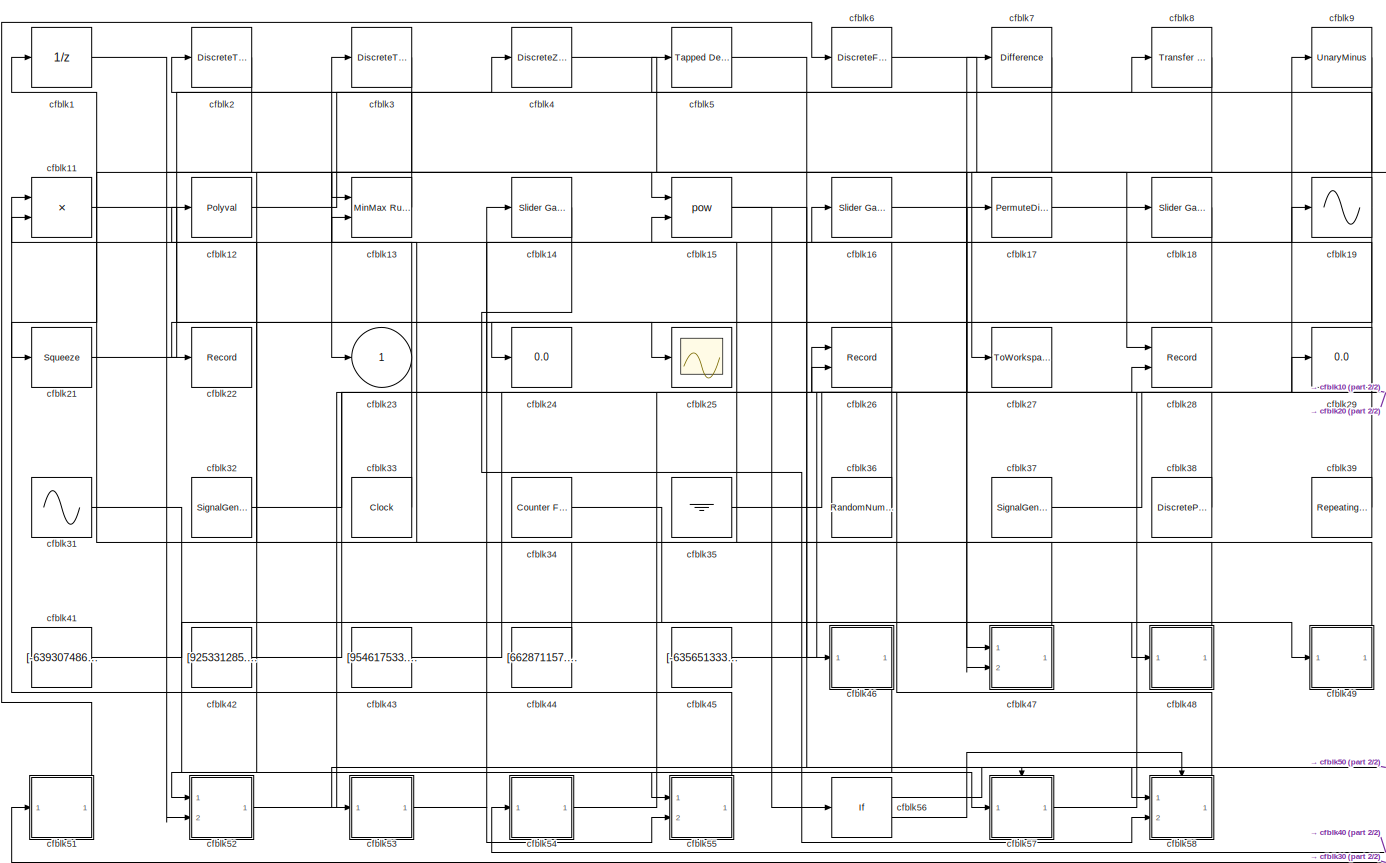
[diagram: root canvas - part 1/2, most of the canvas]
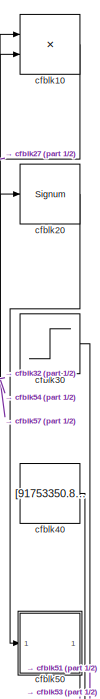
[diagram: root canvas - part 2/2, right side, full height]
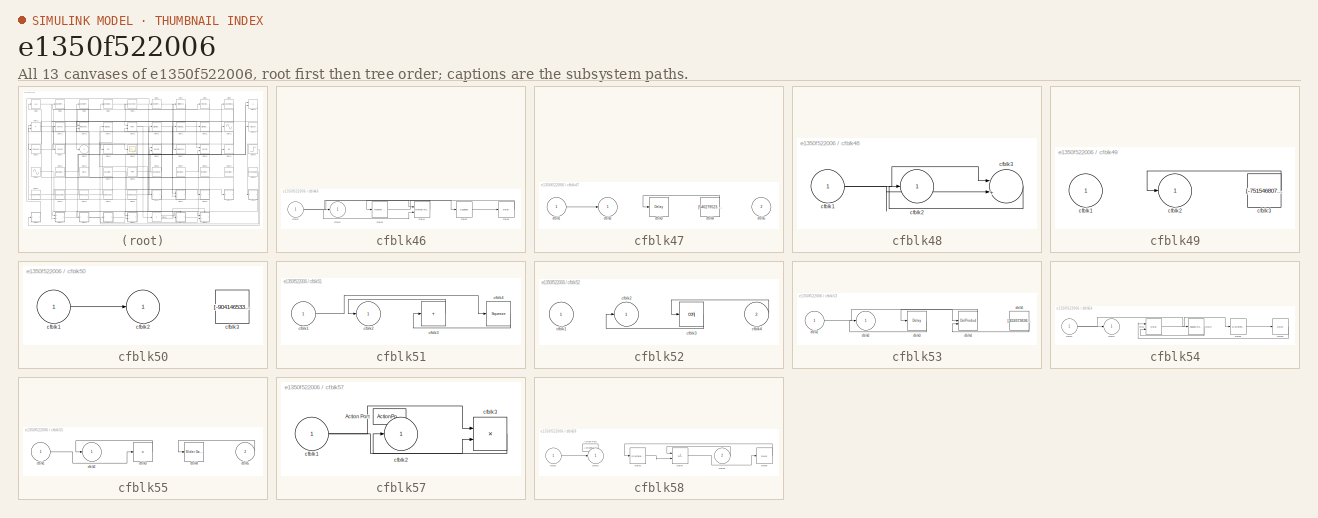
[diagram: thumbnail index - all 13 canvases of the model, root first then tree order]
MODEL slx_e1350f522006
KIND model
CONFIG AbsTol = auto
CONFIG EnableMultiTasking = off
CONFIG FixedStep = auto
CONFIG MaxStep = auto
CONFIG MinStep = auto
CONFIG RelTol = 1e-3
CONFIG SampleTimeConstraint = Unconstrained
CONFIG SolverName = VariableStepAuto
CONFIG StartTime = 0.0
CONFIG StopTime = 10.0
BLOCK [UnitDelay] cfblk1
  HasFrameUpgradeWarning = on
BLOCK [Product] cfblk10
  Ports = [2, 1]
BLOCK [Product] cfblk11
  Ports = [2, 1]
BLOCK [Polyval] cfblk12
  Coefs = [ +2.081618890e-019, -1.441693666e-014, +4.719686976e-010, -8.536869453e-006, +1.621573104e-001, -8.087801117e+001 ]
BLOCK [Reference] cfblk13  REF=simulink/Math
Operations/MinMax
Running
Resettable
  Ports = [2, 1]
  SourceBlock = simulink/Math\nOperations/MinMax\nRunning\nResettable
  SourceProductBaseCode = SL
  SourceType = MinMax Running Resettable
BLOCK [Reference] cfblk14  REF=simulink/Math
Operations/Slider
Gain
  Ports = [1, 1]
  SourceBlock = simulink/Math\nOperations/Slider\nGain
  SourceProductBaseCode = SL
  SourceType = Slider Gain
BLOCK [Math] cfblk15
  Operator = pow
  Ports = [2, 1]
BLOCK [Reference] cfblk16  REF=simulink/Math
Operations/Slider
Gain
  Ports = [1, 1]
  SourceBlock = simulink/Math\nOperations/Slider\nGain
  SourceProductBaseCode = SL
  SourceType = Slider Gain
BLOCK [PermuteDimensions] cfblk17
BLOCK [Reference] cfblk18  REF=simulink/Math
Operations/Slider
Gain
  Ports = [1, 1]
  SourceBlock = simulink/Math\nOperations/Slider\nGain
  SourceProductBaseCode = SL
  SourceType = Slider Gain
BLOCK [Sin] cfblk19
  Ports = [1, 1]
  SampleTime = 0
  TimeSource = Use external signal
BLOCK [DiscreteTransferFcn] cfblk2
  InputPortMap = u0
  Ports = [1, 1]
  SampleTime = 1
BLOCK [Signum] cfblk20
BLOCK [Squeeze] cfblk21
BLOCK [Record] cfblk22
  FileSettingsInternal = {"entries":[{"content":{"excelSettings":{"content":{},"type":"Streamout.ExcelSettings"}},"type":"Streamout.FileSettingStorage","uuid":"1786dd08-d3d1-48fd-88f3-6c9c5e3b2244"}],"packageUris":["http://schema.mathworks.com/mf0/streamout_blocks/R2020a"],"version":"1.0"}
  Ports = [1]
  SignalsInternal = {"entries":[{"content":{"signals":[{"content":{"blockPath":["sampleModel273/cfblk22"],"channel":[],"dimensions":[1,1],"domain":"sampleModel273/cfblk22","lineColor":"#ff13a6","plots":[1],"port":1,"sid":[""],"signalID":11389,"signalName":"cfblk18"},"type":"RecordBlkView.Signal","uuid":"44d7af05-e021-4219-85f4-b2264b388561"}]},"type":"RecordBlkView.InputSignals","uuid":"1305e598-0f40-4dae-bf49-06488a...<+100ch>
  VisualizationBindings = {"sparklinesplugin":{"info":[{"bindingParametersList":[],"subplotID":1}]}}
BLOCK [Outport] cfblk23
BLOCK [Display] cfblk24
  Decimation = 1
  Ports = [1]
BLOCK [Scope] cfblk25
  Floating = off
  NumInputPorts = 1
  Ports = [1]
BLOCK [Record] cfblk26
  CompatibilityTag = XY
  FileSettingsInternal = {"entries":[{"content":{"excelSettings":{"content":{},"type":"Streamout.ExcelSettings"}},"type":"Streamout.FileSettingStorage","uuid":"c9907c03-a1b4-46c3-905a-7ea5945ed0d3"}],"packageUris":["http://schema.mathworks.com/mf0/streamout_blocks/R2020a"],"version":"1.0"}
  Layout = [1 1]
  Ports = [2]
  SignalsInternal = {"entries":[{"content":{"signals":[{"content":{"blockPath":["sampleModel273/cfblk26"],"channel":[],"dimensions":[1],"domain":"sampleModel273/cfblk26","lineColor":"#a2142f","plots":[1],"port":1,"sid":[""],"signalID":11373,"signalName":"cfblk38"},"type":"RecordBlkView.Signal","uuid":"10f35443-25b8-4ed5-9519-77cd749e2a49"},{"content":{"blockPath":["sampleModel273/cfblk26"],"channel":[],"dimensions":[...<+385ch>
  VisualizationBindings = {"xyplotplugin":{"info":[{"series":[{"bindingParametersList":[{"parameter":"X-Axis","signalID":11373,"signalName":"cfblk38"},{"parameter":"Y-Axis","signalID":11377,"signalName":"cfblk58"}],"seriesID":34757}],"subplotID":1}]}}
BLOCK [ToWorkspace] cfblk27
  FixptAsFi = on
  MaxDataPoints = inf
  Ports = [1]
  SampleTime = -1
  SaveFormat = Timeseries
  VariableName = sicnexj
BLOCK [Record] cfblk28
  CompatibilityTag = XY
  FileSettingsInternal = {"entries":[{"content":{"excelSettings":{"content":{},"type":"Streamout.ExcelSettings"}},"type":"Streamout.FileSettingStorage","uuid":"f11b4837-361d-47ed-bc23-be4c68ae3fbc"}],"packageUris":["http://schema.mathworks.com/mf0/streamout_blocks/R2020a"],"version":"1.0"}
  Layout = [1 1]
  Ports = [2]
  SignalsInternal = {"entries":[{"content":{"signals":[{"content":{"blockPath":["sampleModel273/cfblk28"],"channel":[],"dimensions":[1],"domain":"sampleModel273/cfblk28","lineColor":"#a2142f","plots":[1],"port":1,"sid":[""],"signalID":11381,"signalName":"cfblk6"},"type":"RecordBlkView.Signal","uuid":"39c39639-ba01-4672-b896-9cb9c6ecd09e"},{"content":{"blockPath":["sampleModel273/cfblk28"],"channel":[],"dimensions":[1...<+384ch>
  VisualizationBindings = {"xyplotplugin":{"info":[{"series":[{"bindingParametersList":[{"parameter":"X-Axis","signalID":11381,"signalName":"cfblk6"},{"parameter":"Y-Axis","signalID":11385,"signalName":"cfblk43"}],"seriesID":55614}],"subplotID":1}]}}
BLOCK [Display] cfblk29
  Decimation = 1
  Ports = [1]
BLOCK [DiscreteTransferFcn] cfblk3
  InputPortMap = u0
  Ports = [1, 1]
  SampleTime = 1
BLOCK [Step] cfblk30
  After = [817897715.184338]
  Before = [117438544.028774]
  SampleTime = 0
  Time = [48.000000]
BLOCK [Sin] cfblk31
  Amplitude = [629555870.349999]
  Bias = [755274726.941135]
  Ports = [0, 1]
  SampleTime = 0
BLOCK [SignalGenerator] cfblk32
  Amplitude = [-783473337.137861]
  Ports = [0, 1]
  WaveForm = square
BLOCK [Clock] cfblk33
BLOCK [Reference] cfblk34  REF=simulink/Sources/Counter
Free-Running
  Ports = [0, 1]
  SourceBlock = simulink/Sources/Counter\nFree-Running
  SourceProductBaseCode = SL
  SourceType = Counter Free-Running
BLOCK [Ground] cfblk35
BLOCK [RandomNumber] cfblk36
  Mean = [98921.584735]
  SampleTime = 0.1
  Seed = [249651186.000000]
  Variance = [34184.174299]
BLOCK [SignalGenerator] cfblk37
  Amplitude = [196507773.243477]
  Ports = [0, 1]
BLOCK [DiscretePulseGenerator] cfblk38
  Amplitude = [376878024.596685]
  Period = [65768725.640575]
  PhaseDelay = [3.000000]
  Ports = [0, 1]
  PulseType = Time based
  PulseWidth = 5
BLOCK [Reference] cfblk39  REF=simulink/Sources/Repeating
Sequence
  Ports = [0, 1]
  SourceBlock = simulink/Sources/Repeating\nSequence
  SourceProductBaseCode = SL
  SourceType = Repeating table
BLOCK [DiscreteZeroPole] cfblk4
  Gain = 1
  Poles = [0 0.5]
BLOCK [Constant] cfblk40
  SampleTime = 1
  Value = [91753350.881648]
BLOCK [Constant] cfblk41
  SampleTime = 1
  Value = [-639307486.208974]
BLOCK [Constant] cfblk42
  SampleTime = 1
  Value = [925331285.928977]
BLOCK [Constant] cfblk43
  SampleTime = 1
  Value = [954617533.006240]
BLOCK [Constant] cfblk44
  SampleTime = 1
  Value = [662871157.979276]
BLOCK [Constant] cfblk45
  SampleTime = 1
  Value = [-635651333.151348]
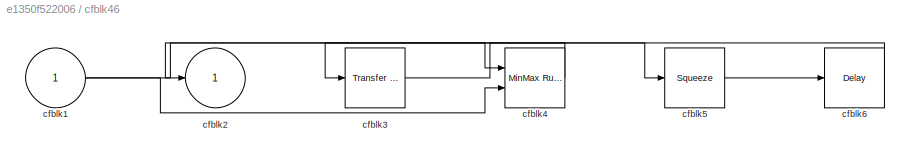
BLOCK [SubSystem] cfblk46
  Ports = [1, 1]
  RequestExecContextInheritance = off
BLOCK [Inport] cfblk46/cfblk1
BLOCK [Outport] cfblk46/cfblk2
BLOCK [Reference] cfblk46/cfblk3  REF=simulink/Discrete/Transfer Fcn
First Order
  Ports = [1, 1]
  SourceBlock = simulink/Discrete/Transfer Fcn\nFirst Order
  SourceProductBaseCode = SL
  SourceType = First Order Transfer Fcn
BLOCK [Reference] cfblk46/cfblk4  REF=simulink/Math
Operations/MinMax
Running
Resettable
  Ports = [2, 1]
  SourceBlock = simulink/Math\nOperations/MinMax\nRunning\nResettable
  SourceProductBaseCode = SL
  SourceType = MinMax Running Resettable
BLOCK [Squeeze] cfblk46/cfblk5
BLOCK [Delay] cfblk46/cfblk6
  InputPortMap = u0
  Ports = [1, 1]
  SampleTime = 1
BLOCK [SubSystem] cfblk47
  Ports = [2, 1]
  RequestExecContextInheritance = off
BLOCK [Inport] cfblk47/cfblk1
BLOCK [Outport] cfblk47/cfblk2
BLOCK [Delay] cfblk47/cfblk3
  InputPortMap = u0
  Ports = [1, 1]
  SampleTime = 1
BLOCK [Constant] cfblk47/cfblk4
  SampleTime = 1
  Value = [540279523.096778]
BLOCK [Inport] cfblk47/cfblk5
  Port = 2
BLOCK [SubSystem] cfblk48
  Ports = [1, 1]
  RequestExecContextInheritance = off
BLOCK [Inport] cfblk48/cfblk1
BLOCK [Outport] cfblk48/cfblk2
BLOCK [Sum] cfblk48/cfblk3
  Inputs = |++
  Ports = [2, 1]
BLOCK [SubSystem] cfblk49
  Ports = [1, 1]
  RequestExecContextInheritance = off
BLOCK [Inport] cfblk49/cfblk1
BLOCK [Outport] cfblk49/cfblk2
BLOCK [Constant] cfblk49/cfblk3
  SampleTime = 1
  Value = [-751546807.111580]
BLOCK [Reference] cfblk5  REF=simulink/Discrete/Tapped Delay
  Ports = [1, 1]
  SourceBlock = simulink/Discrete/Tapped Delay
  SourceProductBaseCode = SL
  SourceType = Tapped Delay Line
BLOCK [SubSystem] cfblk50
  Ports = [1, 1]
  RequestExecContextInheritance = off
BLOCK [Inport] cfblk50/cfblk1
BLOCK [Outport] cfblk50/cfblk2
BLOCK [Constant] cfblk50/cfblk3
  SampleTime = 1
  Value = [-904146533.282916]
BLOCK [SubSystem] cfblk51
  Ports = [1, 1]
  RequestExecContextInheritance = off
BLOCK [Inport] cfblk51/cfblk1
BLOCK [Outport] cfblk51/cfblk2
BLOCK [Sum] cfblk51/cfblk3
  IconShape = rectangular
  Inputs = +
  Ports = [1, 1]
BLOCK [Squeeze] cfblk51/cfblk4
BLOCK [SubSystem] cfblk52
  Ports = [2, 1]
  RequestExecContextInheritance = off
BLOCK [Inport] cfblk52/cfblk1
BLOCK [Outport] cfblk52/cfblk2
BLOCK [Math] cfblk52/cfblk3
  Operator = conj
  Ports = [1, 1]
BLOCK [Inport] cfblk52/cfblk4
  Port = 2
BLOCK [SubSystem] cfblk53
  Ports = [1, 1]
  RequestExecContextInheritance = off
BLOCK [Inport] cfblk53/cfblk1
BLOCK [Outport] cfblk53/cfblk2
BLOCK [Delay] cfblk53/cfblk3
  InputPortMap = u0
  Ports = [1, 1]
  SampleTime = 1
BLOCK [DotProduct] cfblk53/cfblk4
  OutDataTypeStr = Inherit: Inherit via internal rule
BLOCK [Constant] cfblk53/cfblk5
  SampleTime = 1
  Value = [-459373636.650547]
BLOCK [SubSystem] cfblk54
  Ports = [1, 1]
  RequestExecContextInheritance = off
BLOCK [Inport] cfblk54/cfblk1
BLOCK [Outport] cfblk54/cfblk2
BLOCK [Delay] cfblk54/cfblk3
  DelayLengthSource = Input port
  InputPortMap = u0,p1
  Ports = [2, 1]
  SampleTime = 1
BLOCK [Reference] cfblk54/cfblk4  REF=simulink/Discrete/Tapped Delay
  Ports = [1, 1]
  SourceBlock = simulink/Discrete/Tapped Delay
  SourceProductBaseCode = SL
  SourceType = Tapped Delay Line
BLOCK [DiscreteFir] cfblk54/cfblk5
  InputPortMap = u0
  OutputPortMap = o0
  Ports = [1, 1]
  SampleTime = 1
BLOCK [Delay] cfblk54/cfblk6
  InputPortMap = u0
  Ports = [1, 1]
  SampleTime = 1
BLOCK [SubSystem] cfblk55
  Ports = [2, 1]
  RequestExecContextInheritance = off
BLOCK [Inport] cfblk55/cfblk1
BLOCK [Outport] cfblk55/cfblk2
BLOCK [Product] cfblk55/cfblk3
  Inputs = *
  Ports = [1, 1]
BLOCK [Reference] cfblk55/cfblk4  REF=simulink/Math
Operations/Slider
Gain
  Ports = [1, 1]
  SourceBlock = simulink/Math\nOperations/Slider\nGain
  SourceProductBaseCode = SL
  SourceType = Slider Gain
BLOCK [Inport] cfblk55/cfblk5
  Port = 2
BLOCK [If] cfblk56
  IfExpression = u1 >= 0
  Ports = [1, 2]
  SampleTime = 1
BLOCK [SubSystem] cfblk57
  Ports = [1, 1, 0, 0, 0, 0, 0, 1]
  RequestExecContextInheritance = off
  TreatAsAtomicUnit = on
BLOCK [ActionPort] cfblk57/Action Port
  ActionPortLabel = if(u1 >= 0)
BLOCK [Inport] cfblk57/cfblk1
BLOCK [Outport] cfblk57/cfblk2
BLOCK [Product] cfblk57/cfblk3
  Inputs = **
  Ports = [2, 1]
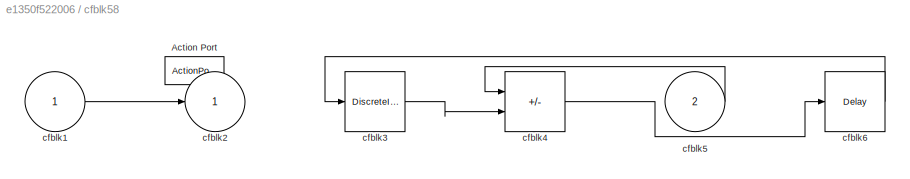
BLOCK [SubSystem] cfblk58
  Ports = [2, 1, 0, 0, 0, 0, 0, 1]
  RequestExecContextInheritance = off
  TreatAsAtomicUnit = on
BLOCK [ActionPort] cfblk58/Action Port
  ActionPortLabel = else
BLOCK [Inport] cfblk58/cfblk1
BLOCK [Outport] cfblk58/cfblk2
BLOCK [DiscreteIntegrator] cfblk58/cfblk3
  ICPrevOutput = DiscIntNeverNeededParam
  ICPrevScaledInput = DiscIntNeverNeededParam
  InitialConditionSetting = Auto
  Ports = [1, 1]
  SampleTime = -1
BLOCK [Sum] cfblk58/cfblk4
  IconShape = rectangular
  Inputs = +-
  Ports = [2, 1]
BLOCK [Inport] cfblk58/cfblk5
  Port = 2
BLOCK [Delay] cfblk58/cfblk6
  InputPortMap = u0
  Ports = [1, 1]
BLOCK [DiscreteFilter] cfblk6
  InputPortMap = u0
  Ports = [1, 1]
  SampleTime = 1
BLOCK [Reference] cfblk7  REF=simulink/Discrete/Difference
  Ports = [1, 1]
  SourceBlock = simulink/Discrete/Difference
  SourceProductBaseCode = SL
  SourceType = Difference
BLOCK [Reference] cfblk8  REF=simulink/Discrete/Transfer Fcn
Real Zero
  Ports = [1, 1]
  SourceBlock = simulink/Discrete/Transfer Fcn\nReal Zero
  SourceProductBaseCode = SL
  SourceType = Transfer Fcn Real Zero
BLOCK [UnaryMinus] cfblk9
LINE cfblk10:1 -> cfblk27:1
LINE cfblk11:1 -> cfblk25:1
LINE cfblk12:1 -> cfblk8:1
LINE cfblk13:1 -> cfblk2:1
LINE cfblk14:1 -> cfblk58:2
NET cfblk15:1 -> cfblk56:1, cfblk58:1
LINE cfblk16:1 -> cfblk47:1
LINE cfblk17:1 -> cfblk18:1
LINE cfblk18:1 -> cfblk22:1
NET cfblk19:1 -> cfblk24:1, cfblk5:1
LINE cfblk1:1 -> cfblk15:1
LINE cfblk20:1 -> cfblk50:1
LINE cfblk21:1 -> cfblk4:1
LINE cfblk2:1 -> cfblk52:2
LINE cfblk30:1 -> cfblk51:1
LINE cfblk31:1 -> cfblk57:1
LINE cfblk32:1 -> cfblk20:1
LINE cfblk33:1 -> cfblk3:1
LINE cfblk34:1 -> cfblk49:1
LINE cfblk35:1 -> cfblk17:1
LINE cfblk36:1 -> cfblk16:1
LINE cfblk37:1 -> cfblk9:1
LINE cfblk38:1 -> cfblk26:1
LINE cfblk39:1 -> cfblk11:2
LINE cfblk3:1 -> cfblk52:1
LINE cfblk40:1 -> cfblk54:1
LINE cfblk41:1 -> cfblk48:1
LINE cfblk42:1 -> cfblk7:1
LINE cfblk43:1 -> cfblk28:2
LINE cfblk44:1 -> cfblk1:1
LINE cfblk45:1 -> cfblk29:1
NET cfblk46/cfblk1:1 -> cfblk46/cfblk4:1, cfblk46/cfblk4:2
LINE cfblk46/cfblk3:1 -> cfblk46/cfblk5:1
LINE cfblk46/cfblk4:1 -> cfblk46/cfblk2:1
LINE cfblk46/cfblk5:1 -> cfblk46/cfblk6:1
LINE cfblk46/cfblk6:1 -> cfblk46/cfblk3:1
LINE cfblk46:1 -> cfblk55:1
LINE cfblk47/cfblk1:1 -> cfblk47/cfblk2:1
LINE cfblk47/cfblk4:1 -> cfblk47/cfblk3:1
LINE cfblk47:1 -> cfblk12:1
NET cfblk48/cfblk1:1 -> cfblk48/cfblk3:1, cfblk48/cfblk3:2
LINE cfblk48/cfblk3:1 -> cfblk48/cfblk2:1
LINE cfblk48:1 -> cfblk15:2
LINE cfblk49/cfblk3:1 -> cfblk49/cfblk2:1
LINE cfblk49:1 -> cfblk13:2
LINE cfblk4:1 -> cfblk47:2
LINE cfblk50/cfblk1:1 -> cfblk50/cfblk2:1
LINE cfblk50:1 -> cfblk53:1
LINE cfblk51/cfblk1:1 -> cfblk51/cfblk4:1
LINE cfblk51/cfblk3:1 -> cfblk51/cfblk2:1
LINE cfblk51/cfblk4:1 -> cfblk51/cfblk3:1
LINE cfblk51:1 -> cfblk6:1
LINE cfblk52/cfblk3:1 -> cfblk52/cfblk2:1
LINE cfblk52/cfblk4:1 -> cfblk52/cfblk3:1
LINE cfblk52:1 -> cfblk14:1
LINE cfblk53/cfblk1:1 -> cfblk53/cfblk4:1
LINE cfblk53/cfblk3:1 -> cfblk53/cfblk2:1
LINE cfblk53/cfblk4:1 -> cfblk53/cfblk3:1
LINE cfblk53/cfblk5:1 -> cfblk53/cfblk4:2
NET cfblk53:1 -> cfblk19:1, cfblk55:2
NET cfblk54/cfblk1:1 -> cfblk54/cfblk2:1, cfblk54/cfblk4:1
LINE cfblk54/cfblk3:1 -> cfblk54/cfblk5:1
LINE cfblk54/cfblk4:1 -> cfblk54/cfblk3:2
LINE cfblk54/cfblk5:1 -> cfblk54/cfblk6:1
LINE cfblk54/cfblk6:1 -> cfblk54/cfblk3:1
LINE cfblk54:1 -> cfblk10:2
LINE cfblk55/cfblk1:1 -> cfblk55/cfblk3:1
LINE cfblk55/cfblk3:1 -> cfblk55/cfblk2:1
LINE cfblk55/cfblk5:1 -> cfblk55/cfblk4:1
LINE cfblk55:1 -> cfblk11:1
LINE cfblk56:1 -> cfblk57:ifaction
LINE cfblk56:2 -> cfblk58:ifaction
NET cfblk57/cfblk1:1 -> cfblk57/cfblk3:1, cfblk57/cfblk3:2
LINE cfblk57/cfblk3:1 -> cfblk57/cfblk2:1
LINE cfblk57:1 -> cfblk10:1
LINE cfblk58/cfblk1:1 -> cfblk58/cfblk2:1
LINE cfblk58/cfblk3:1 -> cfblk58/cfblk4:2
LINE cfblk58/cfblk4:1 -> cfblk58/cfblk6:1
LINE cfblk58/cfblk5:1 -> cfblk58/cfblk4:1
LINE cfblk58/cfblk6:1 -> cfblk58/cfblk3:1
LINE cfblk58:1 -> cfblk26:2
LINE cfblk5:1 -> cfblk46:1
LINE cfblk6:1 -> cfblk28:1
LINE cfblk7:1 -> cfblk13:1
LINE cfblk8:1 -> cfblk23:1
LINE cfblk9:1 -> cfblk21:1
note: NET lines group one-source signal fan-out (src -> all destinations, sorted); 1:1 wires keep LINE
